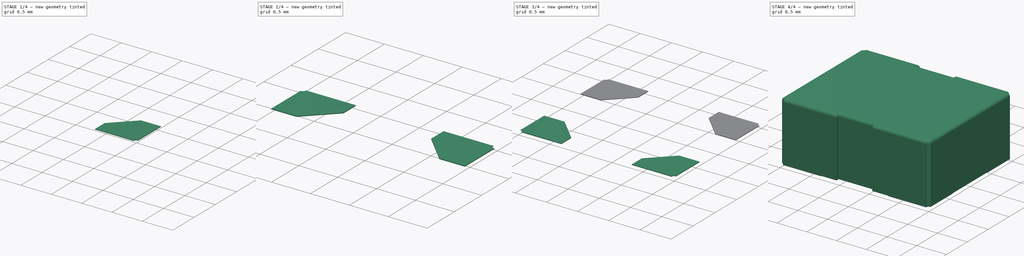
[diagram: build sequence overview — one tinted view per stage of 4, left to right]
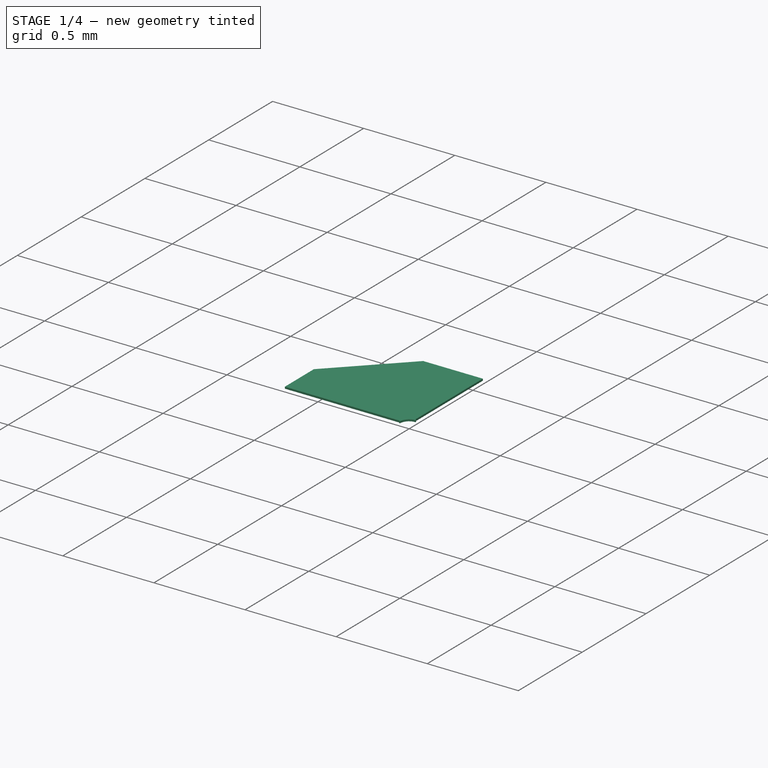
[diagram: stage 1 of 4 — iso view after this stage's code; geometry added in this stage tinted green]
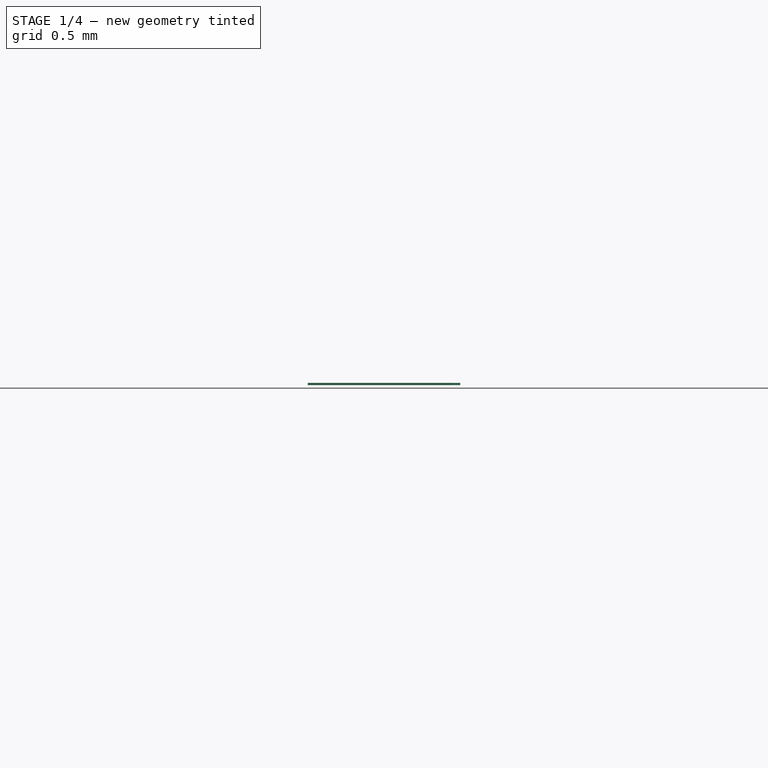
[diagram: stage 1 of 4 — front view after this stage's code; geometry added in this stage tinted green]
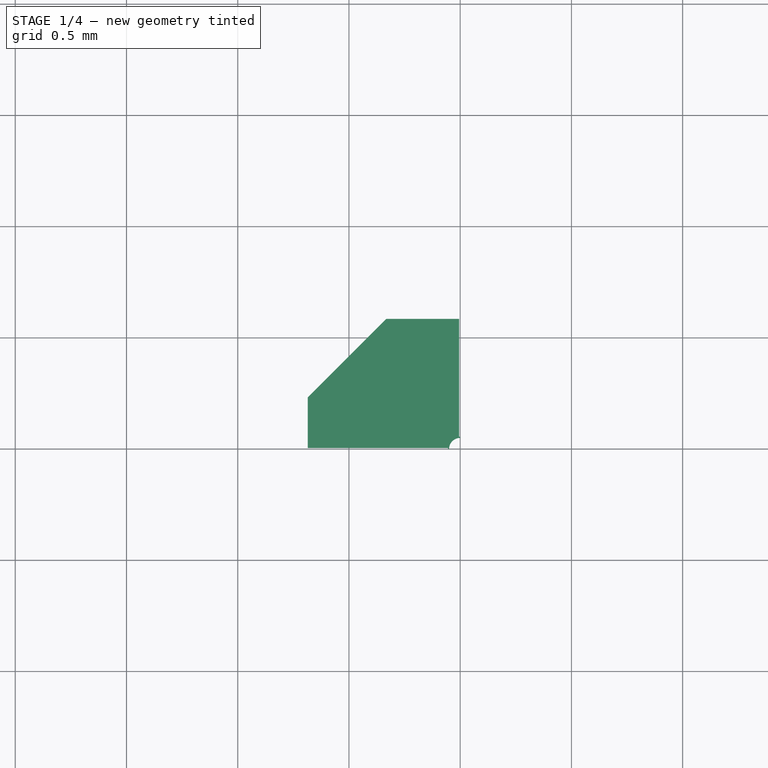
[diagram: stage 1 of 4 — top view after this stage's code; geometry added in this stage tinted green]
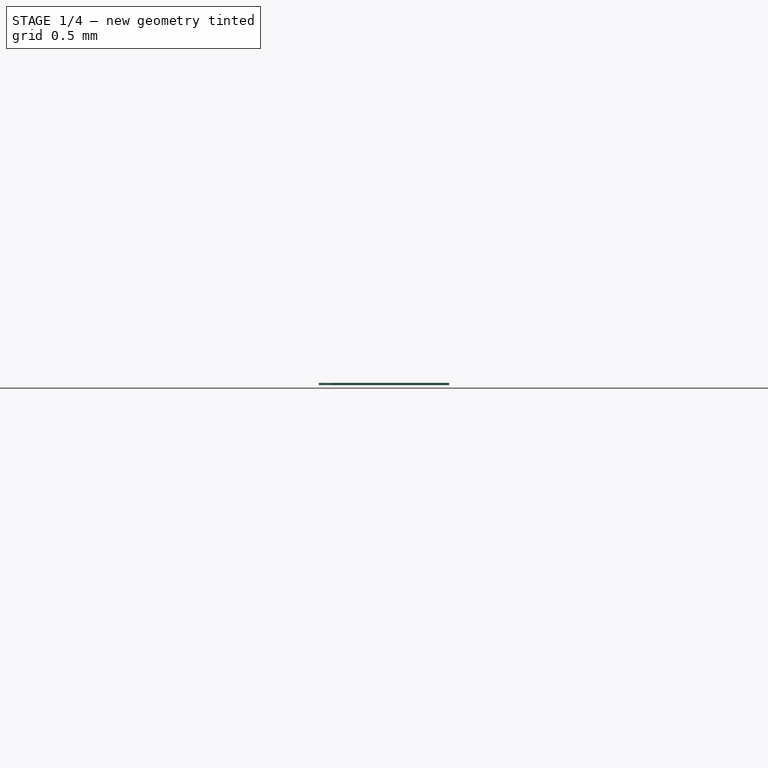
[diagram: stage 1 of 4 — right view after this stage's code; geometry added in this stage tinted green]
FCSTD DOCUMENT  (FreeCAD 0.18R16093 (Git))
Label: IQXO-691
License: All rights reserved
LicenseURL: http://en.wikipedia.org/wiki/All_rights_reserved
objects: Sketcher::SketchObject×5, Part::Extrusion×5, Part::Mirroring×4, Part::Part2DObjectPython×2, App::DocumentObjectGroup×1, Part::Feature×1, Part::Fillet×1, App::Part×1
note: 18 computed .brp shape members not serialized (recipe doc carries the construction recipe); baked Part::Feature solids carry a one-line shape summary decoded from their .brp

FEATURE [Sketcher::SketchObject] Sketch004
  sketch-geometry (10):
    g0: LineSegment StartX=0.055 StartY=0 StartZ=0 EndX=0.055 EndY=0.005 EndZ=0
    g1: LineSegment StartX=0.055 StartY=0.005 StartZ=0 EndX=0.685 EndY=0.005 EndZ=0
    g2: LineSegment StartX=0.685 StartY=0.005 StartZ=0 EndX=0.685 EndY=0.232124 EndZ=0
    g3: LineSegment StartX=0.685 StartY=0.232124 StartZ=0 EndX=0.332124 EndY=0.585 EndZ=0
    g4: LineSegment StartX=0.332124 StartY=0.585 StartZ=0 EndX=0.005 EndY=0.585 EndZ=0
    g5: LineSegment StartX=0.005 StartY=0.585 StartZ=0 EndX=0.005 EndY=0.055 EndZ=0
    g6: ArcOfCircle CenterX=0 CenterY=0 CenterZ=0 NormalX=0 NormalY=0 NormalZ=1 AngleXU=0 Radius=0.05 StartAngle=0 EndAngle=1.5708
    g7: LineSegment StartX=0.05 StartY=0 StartZ=0 EndX=0.055 EndY=0 EndZ=0
    g8: LineSegment StartX=0 StartY=0.05 StartZ=0 EndX=0 EndY=0.055 EndZ=0
    g9: LineSegment StartX=0 StartY=0.055 StartZ=0 EndX=0.005 EndY=0.055 EndZ=0
  constraints (23):
    c: Coincident(g0,g1)
    c: Coincident(g1,g2)
    c: Coincident(g2,g3)
    c: Coincident(g3,g4)
    c: Coincident(g4,g5)
    c: Perpendicular(g5,g4)
    c: Perpendicular(g2,g1)
    c: Parallel(g4,g1)
    c: Perpendicular(g0,g1)
    c: Distance(g0) = 0.005
    c: Angle(g4,g3) = 2.35619
    c: Coincident(g0,g7)
    c: Perpendicular(g7,g0)
    c: Coincident(g7,g6)
    c: Coincident(g6,g-1)
    c: Distance(g7) = 0.005
    c: Distance(g1) = 0.63
    c: Distance(g5) = 0.53
    c: Radius(g6) = 0.05
    c: Angle(g6) = 1.5708
    c: Perpendicular(g6,g7)
    c: Vertical(g5)
    c: Coincident(g8,g9)
FEATURE [Part::Extrusion] Extrude004
  Base = -> Sketch004
  Dir = (0,0,1)
  DirMode = 2
  FaceMakerClass = Part::FaceMakerBullseye
  LengthFwd = -0.01
  LengthRev = 0
  Solid = true
  Symmetric = false
FEATURE [Part::Mirroring] Part__Mirroring001  label="Extrude002 (Mirror #1)001"
  Base = (1.25,0,0)
  Normal = (1,0,0)
  Source = -> Extrude004
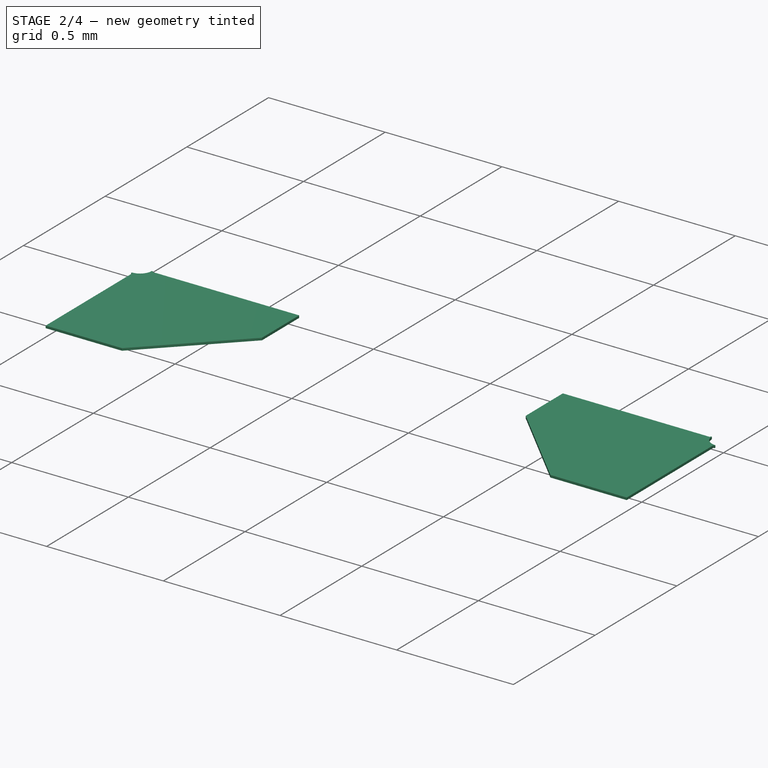
[diagram: stage 2 of 4 — iso view after this stage's code; geometry added in this stage tinted green]
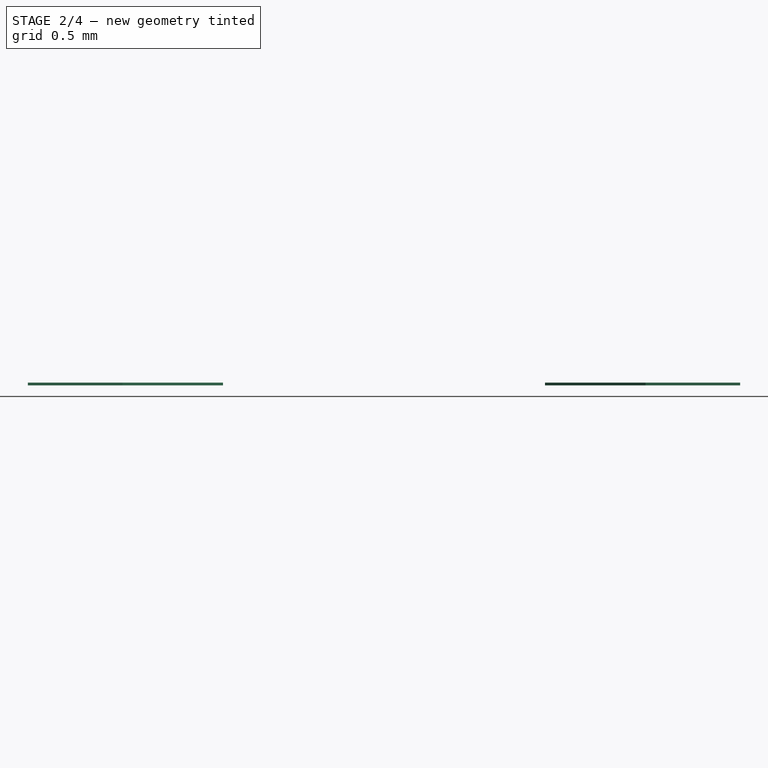
[diagram: stage 2 of 4 — front view after this stage's code; geometry added in this stage tinted green]
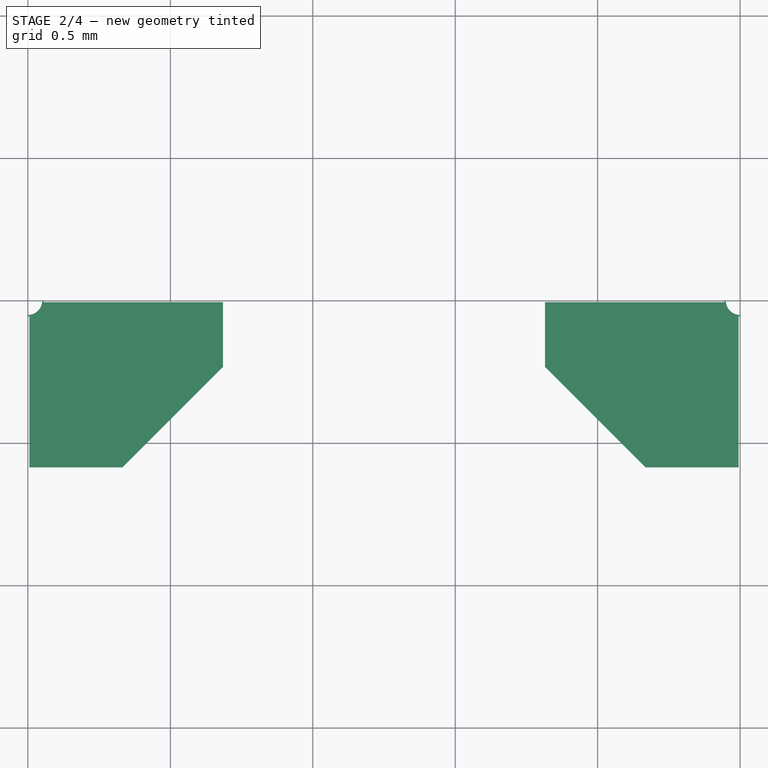
[diagram: stage 2 of 4 — top view after this stage's code; geometry added in this stage tinted green]
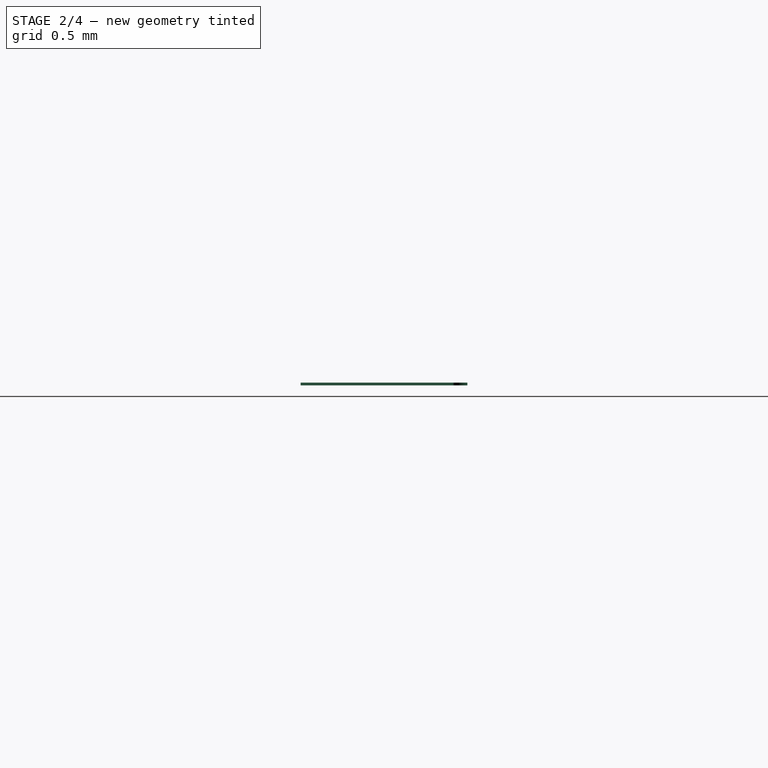
[diagram: stage 2 of 4 — right view after this stage's code; geometry added in this stage tinted green]
FEATURE [Sketcher::SketchObject] Sketch003
  sketch-geometry (10):
    g0: LineSegment StartX=0.055 StartY=0 StartZ=0 EndX=0.055 EndY=0.005 EndZ=0
    g1: LineSegment StartX=0.055 StartY=0.005 StartZ=0 EndX=0.685 EndY=0.005 EndZ=0
    g2: LineSegment StartX=0.685 StartY=0.005 StartZ=0 EndX=0.685 EndY=0.232124 EndZ=0
    g3: LineSegment StartX=0.685 StartY=0.232124 StartZ=0 EndX=0.332124 EndY=0.585 EndZ=0
    g4: LineSegment StartX=0.332124 StartY=0.585 StartZ=0 EndX=0.005 EndY=0.585 EndZ=0
    g5: LineSegment StartX=0.005 StartY=0.585 StartZ=0 EndX=0.005 EndY=0.055 EndZ=0
    g6: ArcOfCircle CenterX=0 CenterY=0 CenterZ=0 NormalX=0 NormalY=0 NormalZ=1 AngleXU=0 Radius=0.05 StartAngle=0 EndAngle=1.5708
    g7: LineSegment StartX=0.05 StartY=0 StartZ=0 EndX=0.055 EndY=0 EndZ=0
    g8: LineSegment StartX=0 StartY=0.05 StartZ=0 EndX=0 EndY=0.055 EndZ=0
    g9: LineSegment StartX=0 StartY=0.055 StartZ=0 EndX=0.005 EndY=0.055 EndZ=0
  constraints (23):
    c: Coincident(g0,g1)
    c: Coincident(g1,g2)
    c: Coincident(g2,g3)
    c: Coincident(g3,g4)
    c: Coincident(g4,g5)
    c: Perpendicular(g5,g4)
    c: Perpendicular(g2,g1)
    c: Parallel(g4,g1)
    c: Perpendicular(g0,g1)
    c: Distance(g0) = 0.005
    c: Angle(g4,g3) = 2.35619
    c: Coincident(g0,g7)
    c: Perpendicular(g7,g0)
    c: Coincident(g7,g6)
    c: Coincident(g6,g-1)
    c: Distance(g7) = 0.005
    c: Distance(g1) = 0.63
    c: Distance(g5) = 0.53
    c: Radius(g6) = 0.05
    c: Angle(g6) = 1.5708
    c: Perpendicular(g6,g7)
    c: Vertical(g5)
    c: Coincident(g8,g9)
FEATURE [Part::Extrusion] Extrude003
  Base = -> Sketch003
  Dir = (0,0,1)
  DirMode = 2
  FaceMakerClass = Part::FaceMakerBullseye
  LengthFwd = -0.01
  LengthRev = 0
  Solid = true
  Symmetric = false
FEATURE [Part::Mirroring] Part__Mirroring002  label="Extrude003 (Mirror #3)"
  Base = (0,1,0)
  Normal = (0,1,0)
  Source = -> Extrude003
FEATURE [Part::Mirroring] Part__Mirroring003  label="Extrude002 (Mirror #1)001 (Mirror #4)"
  Base = (0,1,0)
  Normal = (0,1,0)
  Source = -> Part__Mirroring001
FEATURE [App::Part] Part
  Group = -> [Wire001,Group,Sketch,Wire002,ShapeString,Extrude,Fillet,Sketch001,Extrude001,Extrude002,Sketch002,Part__Mirroring,Extrude003,Sketch003,Part__Mirroring002,Sketch004,Part__Mirroring001,Extrude004,Part__Mirroring003]
  Origin = -> Origin
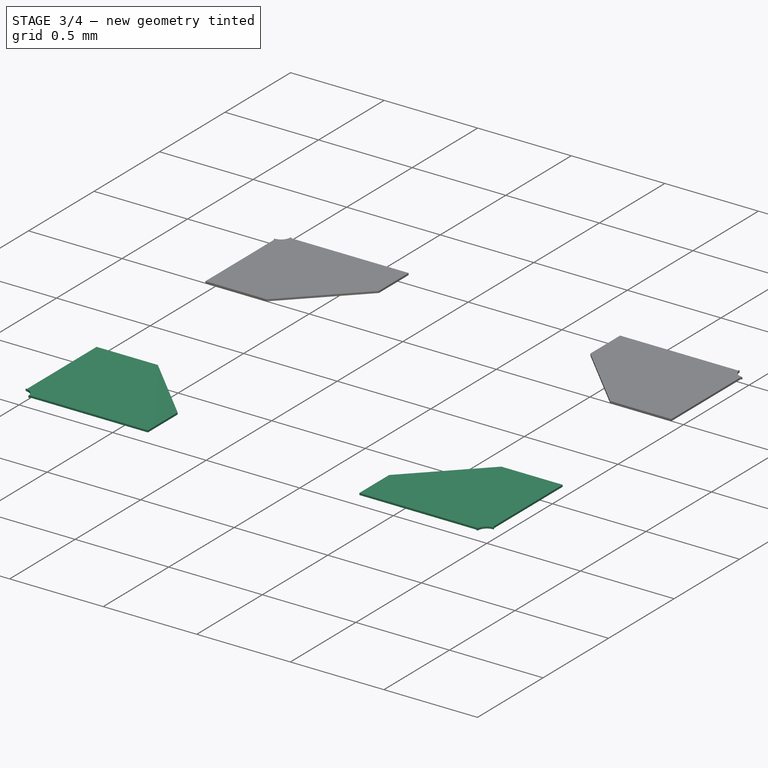
[diagram: stage 3 of 4 — iso view after this stage's code; geometry added in this stage tinted green]
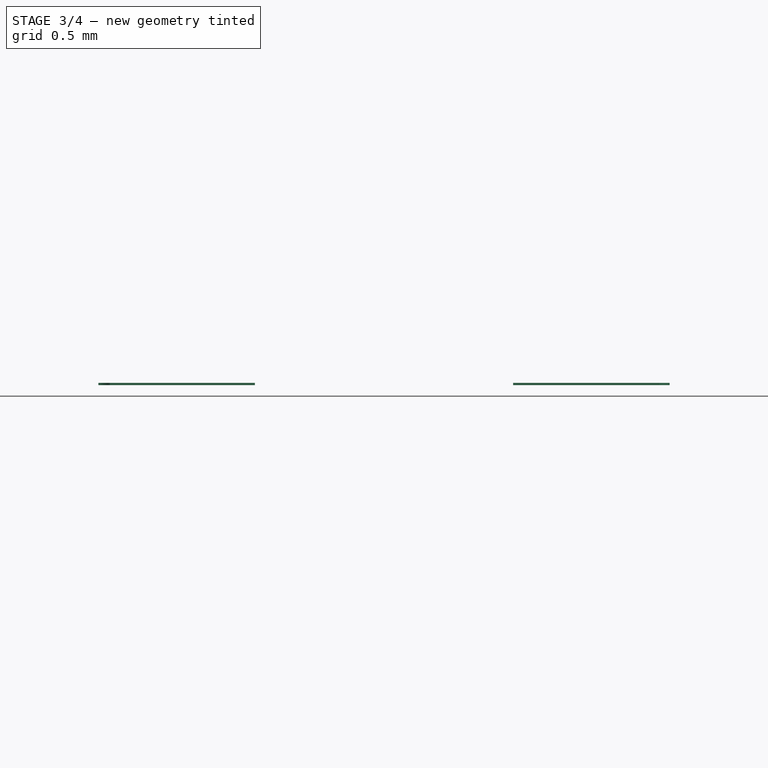
[diagram: stage 3 of 4 — front view after this stage's code; geometry added in this stage tinted green]
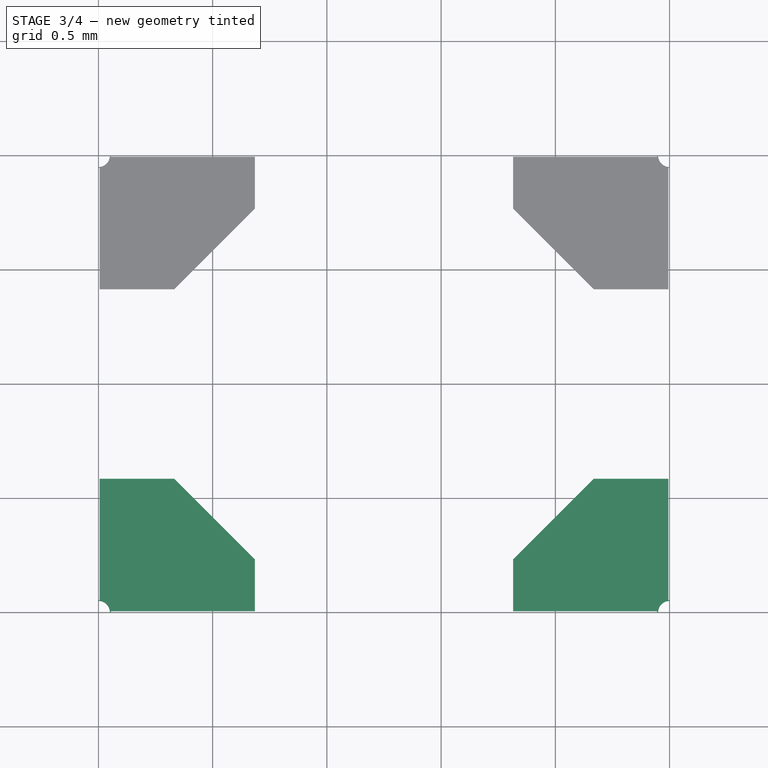
[diagram: stage 3 of 4 — top view after this stage's code; geometry added in this stage tinted green]
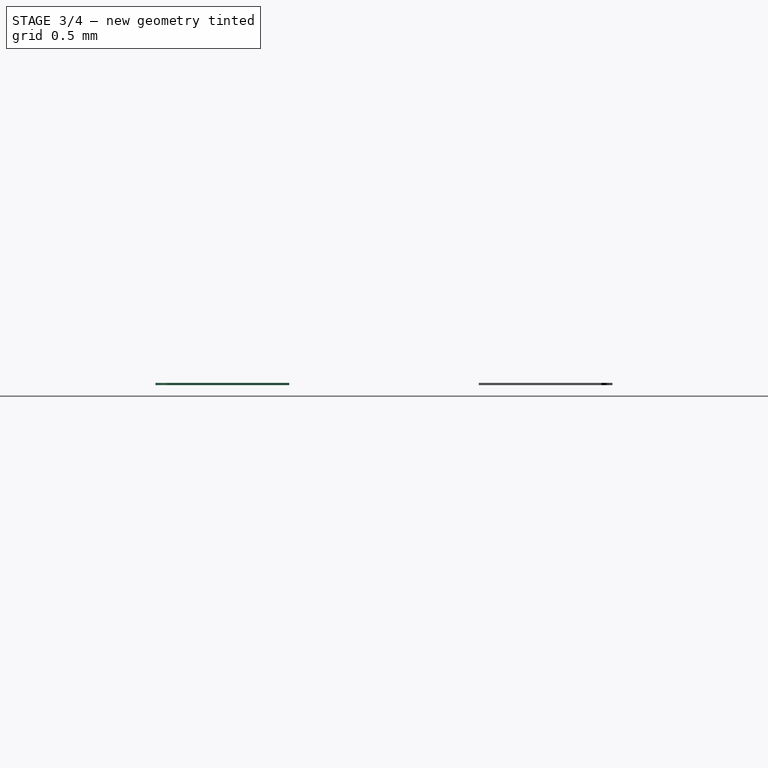
[diagram: stage 3 of 4 — right view after this stage's code; geometry added in this stage tinted green]
FEATURE [Part::Part2DObjectPython] ShapeString  # Draft 2D object (typed FeaturePython)
  FontFile = <userpath>/Projects/Boards/L1Switch/Docs/bloggersans-medium.ttf
  Placement = pos=(0.35,0.85,1.01) rot=(0,0,1;0rad)
  Size = 0.17
  String = IQXO-691
  Tracking = 0
FEATURE [Sketcher::SketchObject] Sketch001
  sketch-geometry (10):
    g0: LineSegment StartX=0.055 StartY=0 StartZ=0 EndX=0.055 EndY=0.005 EndZ=0
    g1: LineSegment StartX=0.055 StartY=0.005 StartZ=0 EndX=0.685 EndY=0.005 EndZ=0
    g2: LineSegment StartX=0.685 StartY=0.005 StartZ=0 EndX=0.685 EndY=0.232124 EndZ=0
    g3: LineSegment StartX=0.685 StartY=0.232124 StartZ=0 EndX=0.332124 EndY=0.585 EndZ=0
    g4: LineSegment StartX=0.332124 StartY=0.585 StartZ=0 EndX=0.005 EndY=0.585 EndZ=0
    g5: LineSegment StartX=0.005 StartY=0.585 StartZ=0 EndX=0.005 EndY=0.055 EndZ=0
    g6: ArcOfCircle CenterX=0 CenterY=0 CenterZ=0 NormalX=0 NormalY=0 NormalZ=1 AngleXU=0 Radius=0.05 StartAngle=0 EndAngle=1.5708
    g7: LineSegment StartX=0.05 StartY=0 StartZ=0 EndX=0.055 EndY=0 EndZ=0
    g8: LineSegment StartX=0 StartY=0.05 StartZ=0 EndX=0 EndY=0.055 EndZ=0
    g9: LineSegment StartX=0 StartY=0.055 StartZ=0 EndX=0.005 EndY=0.055 EndZ=0
  constraints (23):
    c: Coincident(g0,g1)
    c: Coincident(g1,g2)
    c: Coincident(g2,g3)
    c: Coincident(g3,g4)
    c: Coincident(g4,g5)
    c: Perpendicular(g5,g4)
    c: Perpendicular(g2,g1)
    c: Parallel(g4,g1)
    c: Perpendicular(g0,g1)
    c: Distance(g0) = 0.005
    c: Angle(g4,g3) = 2.35619
    c: Coincident(g0,g7)
    c: Perpendicular(g7,g0)
    c: Coincident(g7,g6)
    c: Coincident(g6,g-1)
    c: Distance(g7) = 0.005
    c: Distance(g1) = 0.63
    c: Distance(g5) = 0.53
    c: Radius(g6) = 0.05
    c: Angle(g6) = 1.5708
    c: Perpendicular(g6,g7)
    c: Vertical(g5)
    c: Coincident(g8,g9)
FEATURE [Part::Extrusion] Extrude001
  Base = -> Sketch001
  Dir = (0,0,1)
  DirMode = 2
  FaceMakerClass = Part::FaceMakerBullseye
  LengthFwd = -0.01
  LengthRev = 0
  Solid = true
  Symmetric = false
FEATURE [Sketcher::SketchObject] Sketch002
  sketch-geometry (10):
    g0: LineSegment StartX=0.055 StartY=0 StartZ=0 EndX=0.055 EndY=0.005 EndZ=0
    g1: LineSegment StartX=0.055 StartY=0.005 StartZ=0 EndX=0.685 EndY=0.005 EndZ=0
    g2: LineSegment StartX=0.685 StartY=0.005 StartZ=0 EndX=0.685 EndY=0.232124 EndZ=0
    g3: LineSegment StartX=0.685 StartY=0.232124 StartZ=0 EndX=0.332124 EndY=0.585 EndZ=0
    g4: LineSegment StartX=0.332124 StartY=0.585 StartZ=0 EndX=0.005 EndY=0.585 EndZ=0
    g5: LineSegment StartX=0.005 StartY=0.585 StartZ=0 EndX=0.005 EndY=0.055 EndZ=0
    g6: ArcOfCircle CenterX=0 CenterY=0 CenterZ=0 NormalX=0 NormalY=0 NormalZ=1 AngleXU=0 Radius=0.05 StartAngle=0 EndAngle=1.5708
    g7: LineSegment StartX=0.05 StartY=0 StartZ=0 EndX=0.055 EndY=0 EndZ=0
    g8: LineSegment StartX=0 StartY=0.05 StartZ=0 EndX=0 EndY=0.055 EndZ=0
    g9: LineSegment StartX=0 StartY=0.055 StartZ=0 EndX=0.005 EndY=0.055 EndZ=0
  constraints (23):
    c: Coincident(g0,g1)
    c: Coincident(g1,g2)
    c: Coincident(g2,g3)
    c: Coincident(g3,g4)
    c: Coincident(g4,g5)
    c: Perpendicular(g5,g4)
    c: Perpendicular(g2,g1)
    c: Parallel(g4,g1)
    c: Perpendicular(g0,g1)
    c: Distance(g0) = 0.005
    c: Angle(g4,g3) = 2.35619
    c: Coincident(g0,g7)
    c: Perpendicular(g7,g0)
    c: Coincident(g7,g6)
    c: Coincident(g6,g-1)
    c: Distance(g7) = 0.005
    c: Distance(g1) = 0.63
    c: Distance(g5) = 0.53
    c: Radius(g6) = 0.05
    c: Angle(g6) = 1.5708
    c: Perpendicular(g6,g7)
    c: Vertical(g5)
    c: Coincident(g8,g9)
FEATURE [Part::Extrusion] Extrude002
  Base = -> Sketch002
  Dir = (0,0,1)
  DirMode = 2
  FaceMakerClass = Part::FaceMakerBullseye
  LengthFwd = -0.01
  LengthRev = 0
  Solid = true
  Symmetric = false
FEATURE [Part::Mirroring] Part__Mirroring  label="Extrude002 (Mirror #1)"
  Base = (1.25,0,0)
  Normal = (1,0,0)
  Source = -> Extrude002
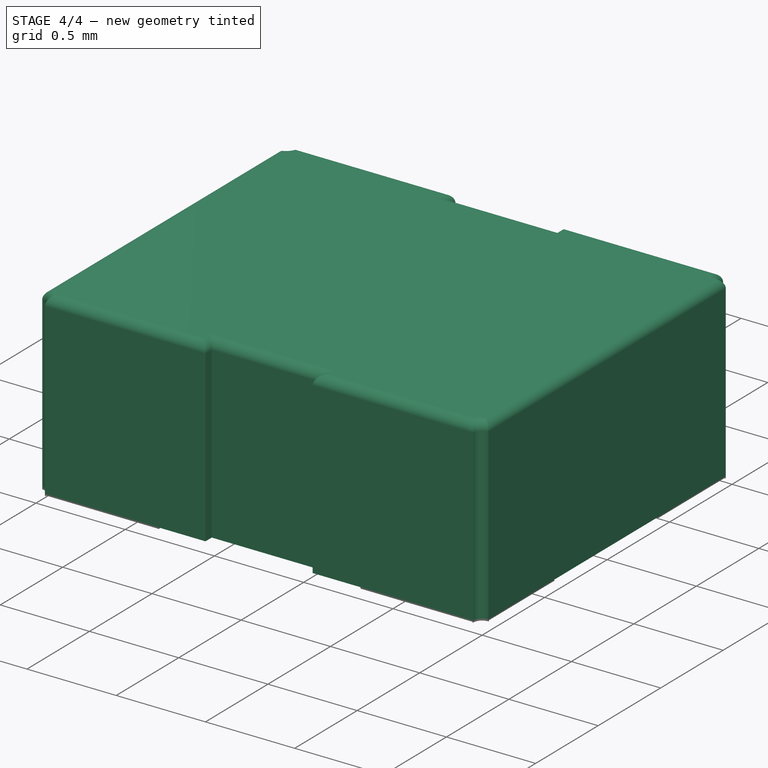
[diagram: stage 4 of 4 — iso view after this stage's code; geometry added in this stage tinted green]
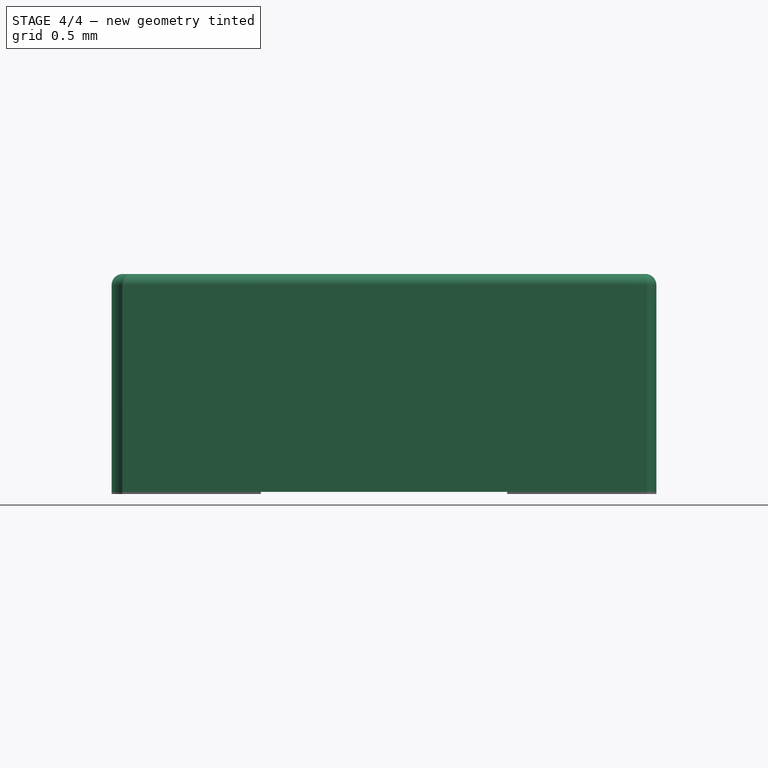
[diagram: stage 4 of 4 — front view after this stage's code; geometry added in this stage tinted green]
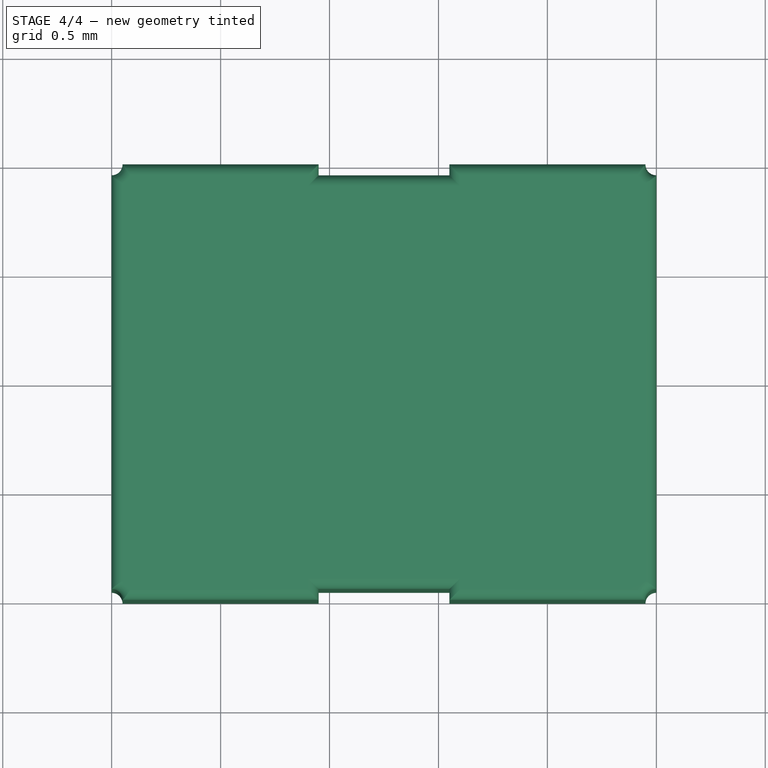
[diagram: stage 4 of 4 — top view after this stage's code; geometry added in this stage tinted green]
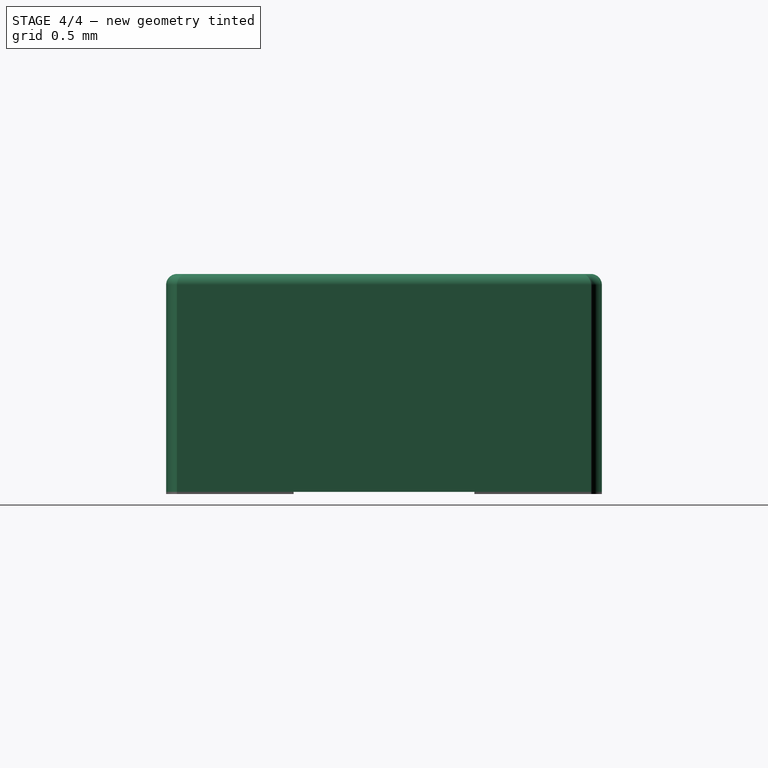
[diagram: stage 4 of 4 — right view after this stage's code; geometry added in this stage tinted green]
FEATURE [Part::Part2DObjectPython] Wire001  # Draft 2D object (typed FeaturePython)
  ChamferSize = 0
  Closed = true
  End = (1,0,0)
  FilletRadius = 0
  Length = 1.3
  MakeFace = false
  Placement = pos=(1.7,0,0) rot=(0,0,1;0rad)
  Points = (4) [(-0.1,3.06162e-18,0),(-0.1,0.05,0),(-0.7,0.05,0),(-0.7,2.14313e-17,0)]
  Start = (1.6,0,0)
  Subdivisions = 0
FEATURE [App::DocumentObjectGroup] Group
FEATURE [Part::Feature] Wire002
  shape: bbox 2.5 x 2 x 2e-07 mm, 0 faces, 0 solids (baked)
FEATURE [Sketcher::SketchObject] Sketch
  sketch-geometry (16):
    g0: LineSegment StartX=0.95 StartY=2 StartZ=0 EndX=0.95 EndY=1.95 EndZ=0
    g1: LineSegment StartX=0.95 StartY=1.95 StartZ=0 EndX=1.55 EndY=1.95 EndZ=0
    g2: LineSegment StartX=1.55 StartY=1.95 StartZ=0 EndX=1.55 EndY=2 EndZ=0
    g3: LineSegment StartX=1.55 StartY=2 StartZ=0 EndX=2.45 EndY=2 EndZ=0
    g4: ArcOfCircle CenterX=2.5 CenterY=2 CenterZ=0 NormalX=0 NormalY=0 NormalZ=1 AngleXU=0 Radius=0.05 StartAngle=3.14159 EndAngle=4.71239
    g5: LineSegment StartX=2.5 StartY=1.95 StartZ=0 EndX=2.5 EndY=0.05 EndZ=0
    g6: ArcOfCircle CenterX=2.5 CenterY=0 CenterZ=0 NormalX=0 NormalY=0 NormalZ=1 AngleXU=0 Radius=0.05 StartAngle=1.5708 EndAngle=3.14159
    g7: LineSegment StartX=2.45 StartY=0 StartZ=0 EndX=1.55 EndY=0 EndZ=0
    g8: LineSegment StartX=1.55 StartY=0 StartZ=0 EndX=1.55 EndY=0.05 EndZ=0
    g9: LineSegment StartX=1.55 StartY=0.05 StartZ=0 EndX=0.95 EndY=0.05 EndZ=0
    g10: LineSegment StartX=0.95 StartY=0.05 StartZ=0 EndX=0.95 EndY=0 EndZ=0
    g11: LineSegment StartX=0.95 StartY=0 StartZ=0 EndX=0.05 EndY=0 EndZ=0
    g12: ArcOfCircle CenterX=0 CenterY=0 CenterZ=0 NormalX=0 NormalY=0 NormalZ=1 AngleXU=0 Radius=0.05 StartAngle=0 EndAngle=1.5708
    g13: LineSegment StartX=0 StartY=0.05 StartZ=0 EndX=0 EndY=1.95 EndZ=0
    g14: ArcOfCircle CenterX=0 CenterY=2 CenterZ=0 NormalX=0 NormalY=0 NormalZ=1 AngleXU=0 Radius=0.05 StartAngle=4.71239 EndAngle=6.28319
    g15: LineSegment StartX=0.05 StartY=2 StartZ=0 EndX=0.95 EndY=2 EndZ=0
  constraints (33):
    c: Vertical(g0)
    c: Coincident(g0,g1)
    c: Horizontal(g1)
    c: Coincident(g1,g2)
    c: Vertical(g2)
    c: Coincident(g2,g3)
    c: Horizontal(g3)
    c: Coincident(g3,g4)
    c: Coincident(g4,g5)
    c: Vertical(g5)
    c: Coincident(g5,g6)
    c: Coincident(g6,g7)
    c: Coincident(g7,g8)
    c: Vertical(g8)
    c: Coincident(g8,g9)
    c: Coincident(g9,g10)
    c: Vertical(g10)
    c: Coincident(g10,g11)
    c: Coincident(g11,g12)
    c: Coincident(g12,g13)
    c: Vertical(g13)
    c: Coincident(g13,g14)
    c: Coincident(g14,g15)
    c: Horizontal(g15)
    c: Coincident(g15,g0)
    c: Radius(g14) = 0.05
    c: Radius(g12) = 0.05
    c: Radius(g6) = 0.05
    c: Radius(g4) = 0.05
    c: Distance(g15) = 0.9
    c: Distance(g11) = 0.9
    c: Distance(g7) = 0.9
    c: Distance(g3) = 0.9
FEATURE [Part::Extrusion] Extrude
  Base = -> Sketch
  Dir = (0,0,1)
  DirMode = 2
  FaceMakerClass = Part::FaceMakerBullseye
  LengthFwd = 1
  LengthRev = 0
  Solid = true
  Symmetric = false
FEATURE [Part::Fillet] Fillet
  Base = -> Extrude
  Edges = 16 edges r=0.05: [Edge4,Edge7,Edge10,Edge13,Edge16,Edge19,Edge22,Edge25,Edge28,Edge31,Edge34,Edge37,Edge40,Edge43,Edge46,Edge48]
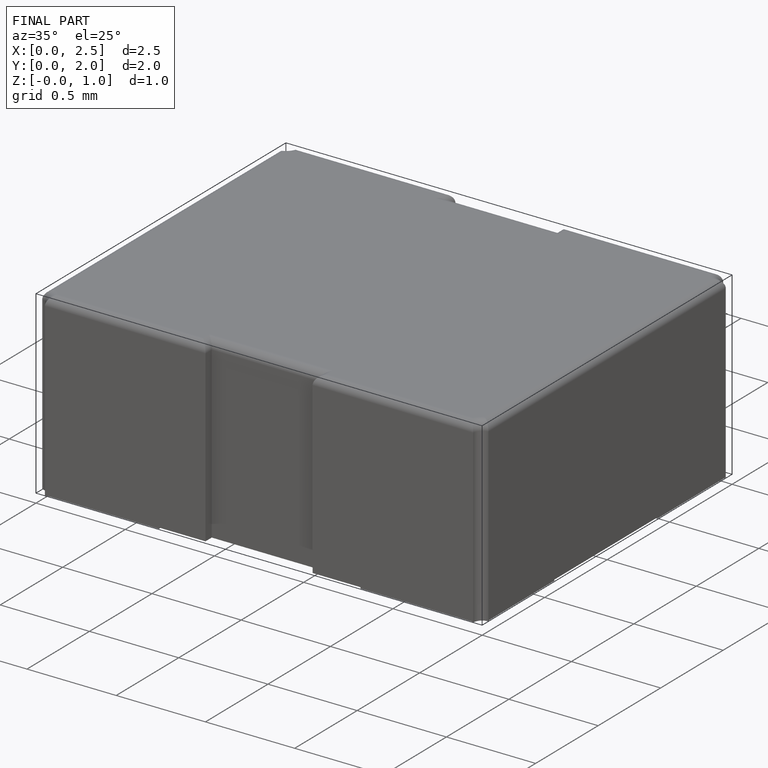
[diagram: finished part — iso view with bounding-box wireframe]
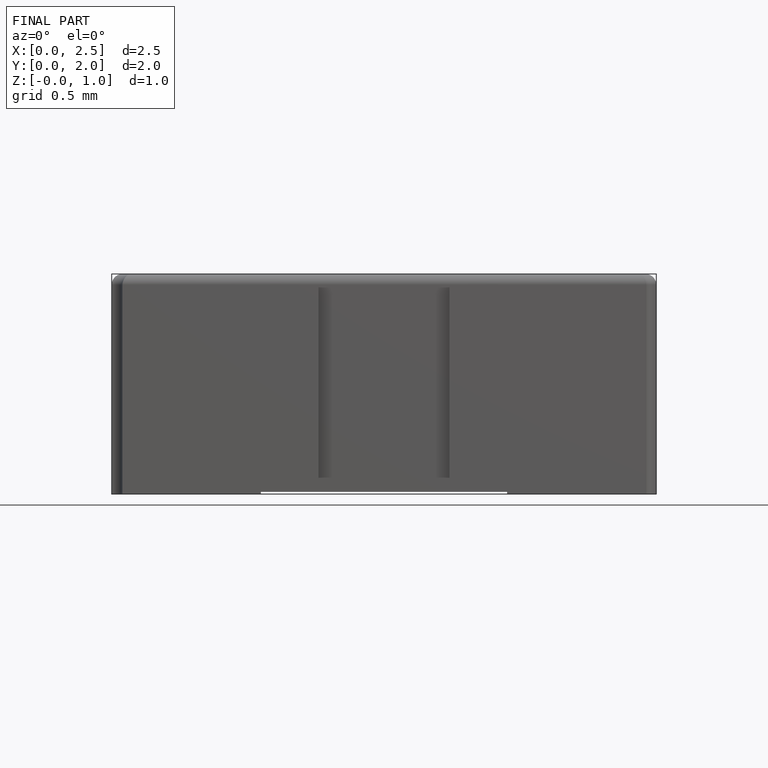
[diagram: finished part — front view with bounding-box wireframe]
